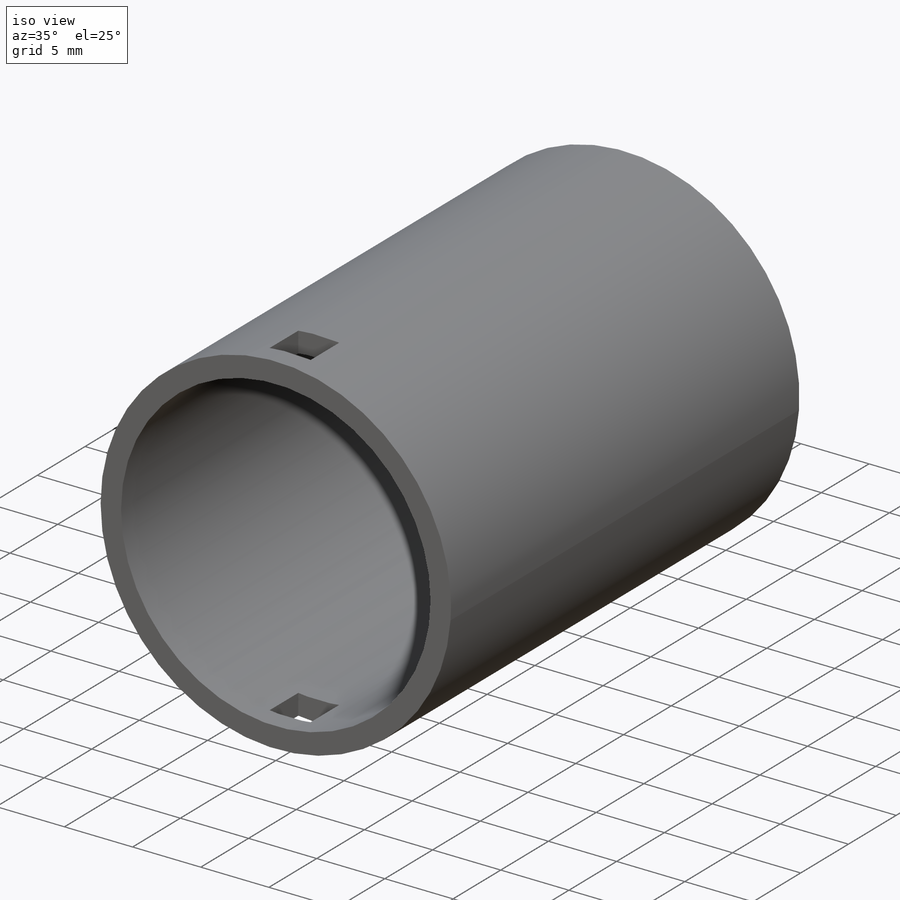
[diagram: iso view]
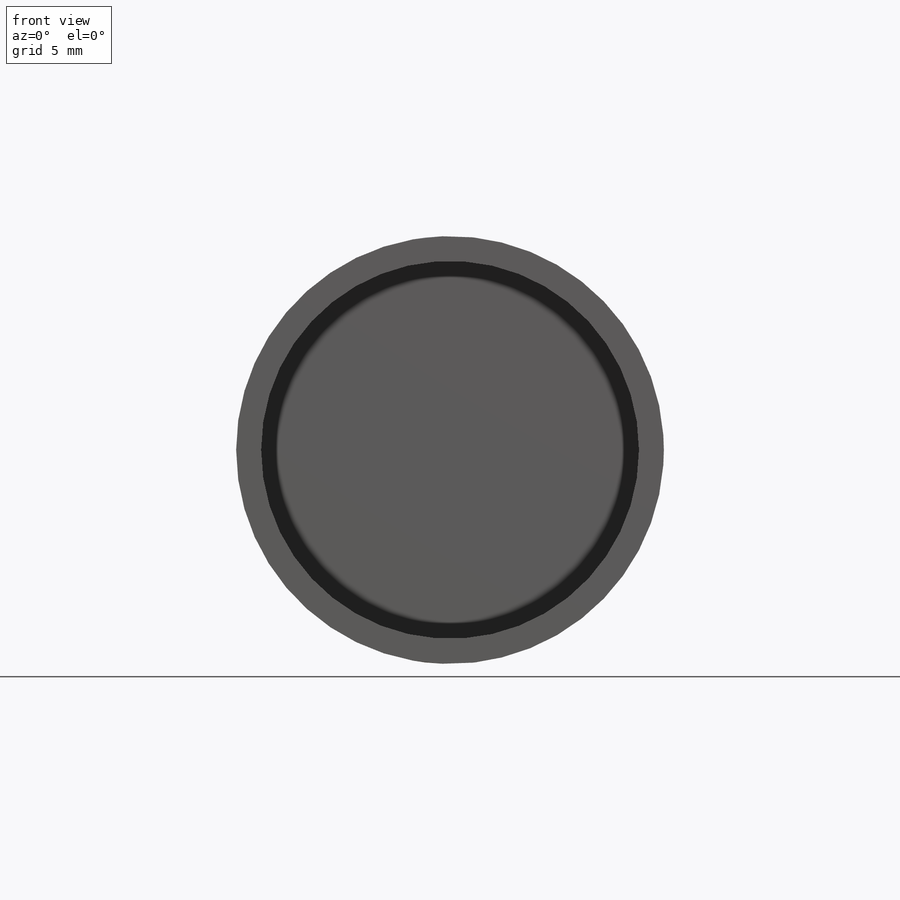
[diagram: front view]
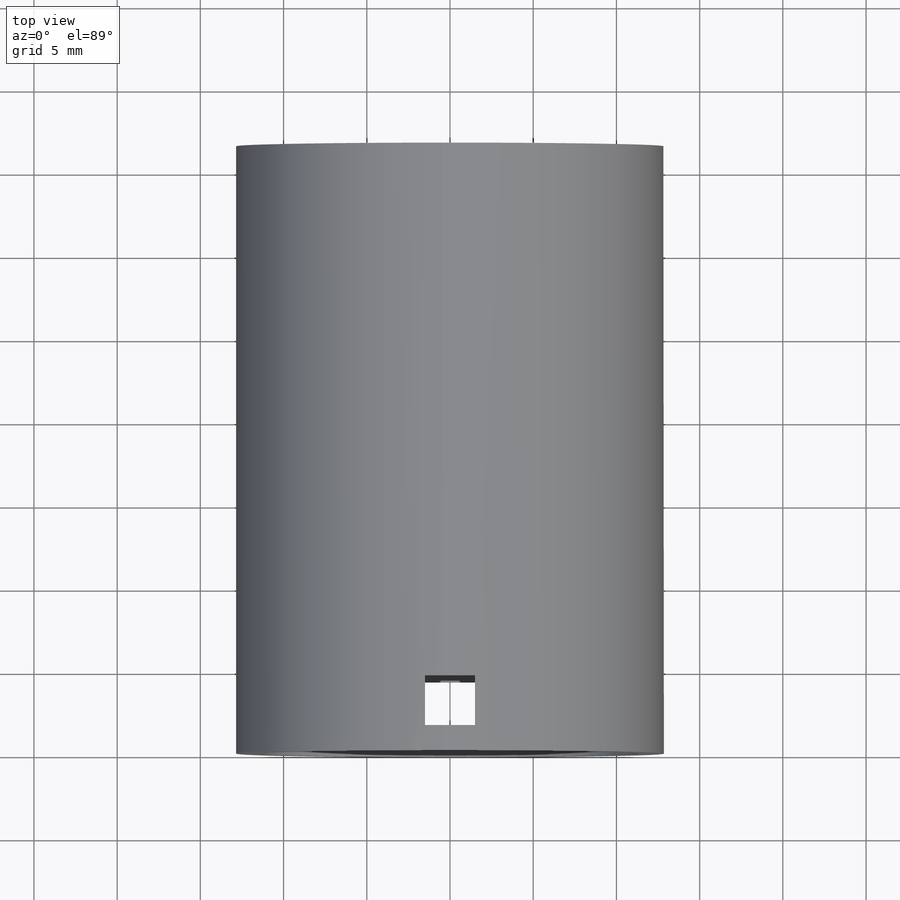
[diagram: top view]
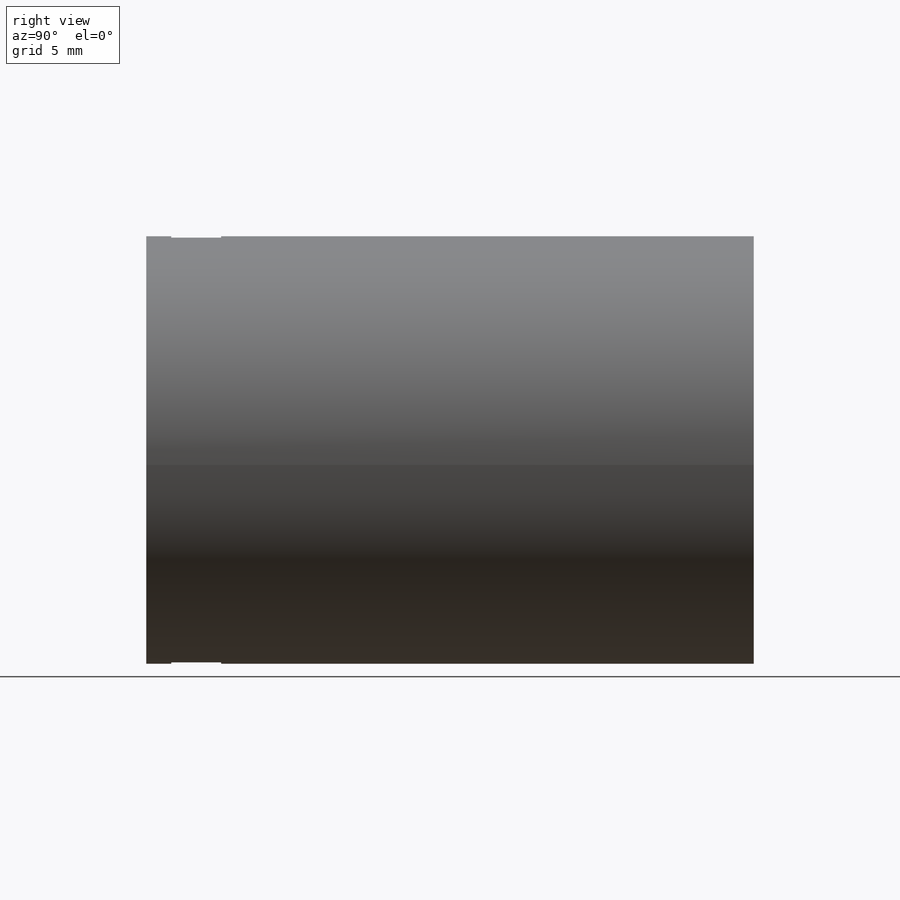
[diagram: right view]
SOLIDWORKS PART (.sldprt)
format: sldprt  version: not decoded by parser v0  size: 163,840 bytes
history: native  units: mm
features: plane x3, sketch x3, extrude x2, material x1, cut_extrude x1 (+10 scaffold rows collapsed)
feature tree (20):
  scaffold x10  (default folders/planes/origin — collapsed)
  material  "Material <não especificado>"
  plane  "Plano frontal"
  plane  "Plano superior"
  plane  "Plano direito"
  sketch  "Esboço1"  dims[D1=1.5mm]
  extrude  "Ressalto-extrusão1"  Depth=35mm
  sketch  "Esboço2"  dims[D1=0.0mm]
  extrude  "Ressalto-extrusão2"  Depth=1.5mm
  sketch  "Esboço3"  dims[c1.D1=3.0mm c1.D2=3.0mm c2.D1=3.0mm]
  cut_extrude  "Corte-extrusão1"  [1 undecoded]
decode coverage: 5 of 6 modeling features carry decoded parameters
note: 1 parameter value undecoded
note: suppression state not decoded; provenance and decode notes live in map.json
